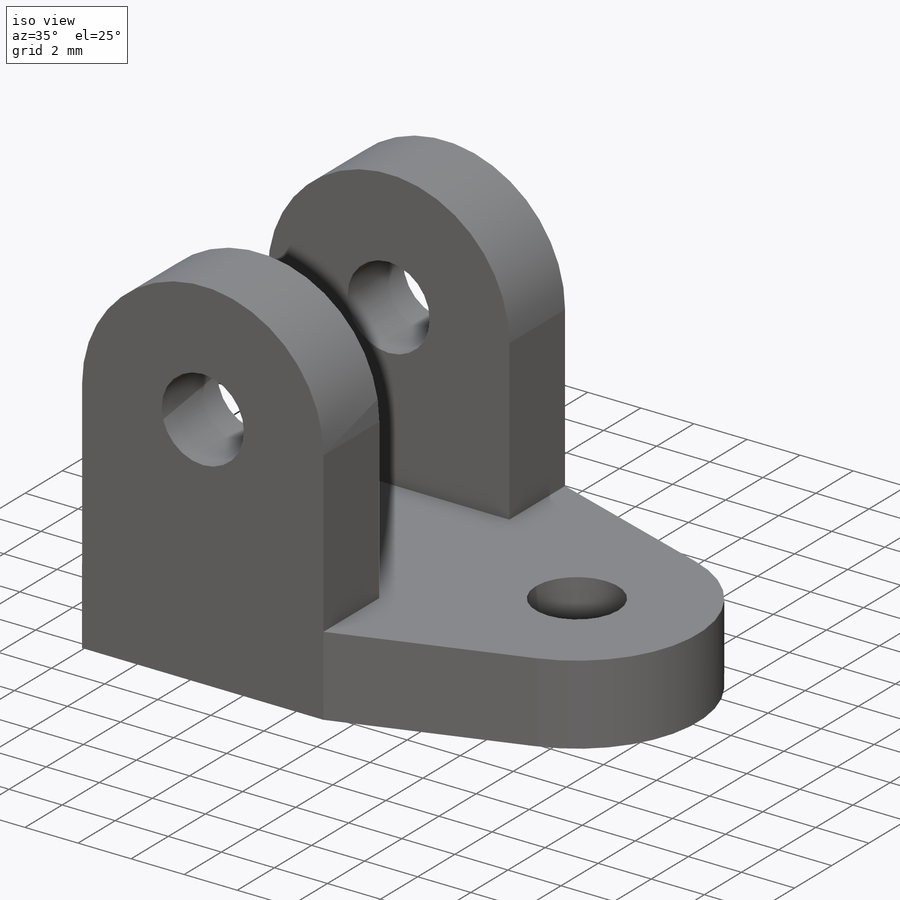
[diagram: iso view]
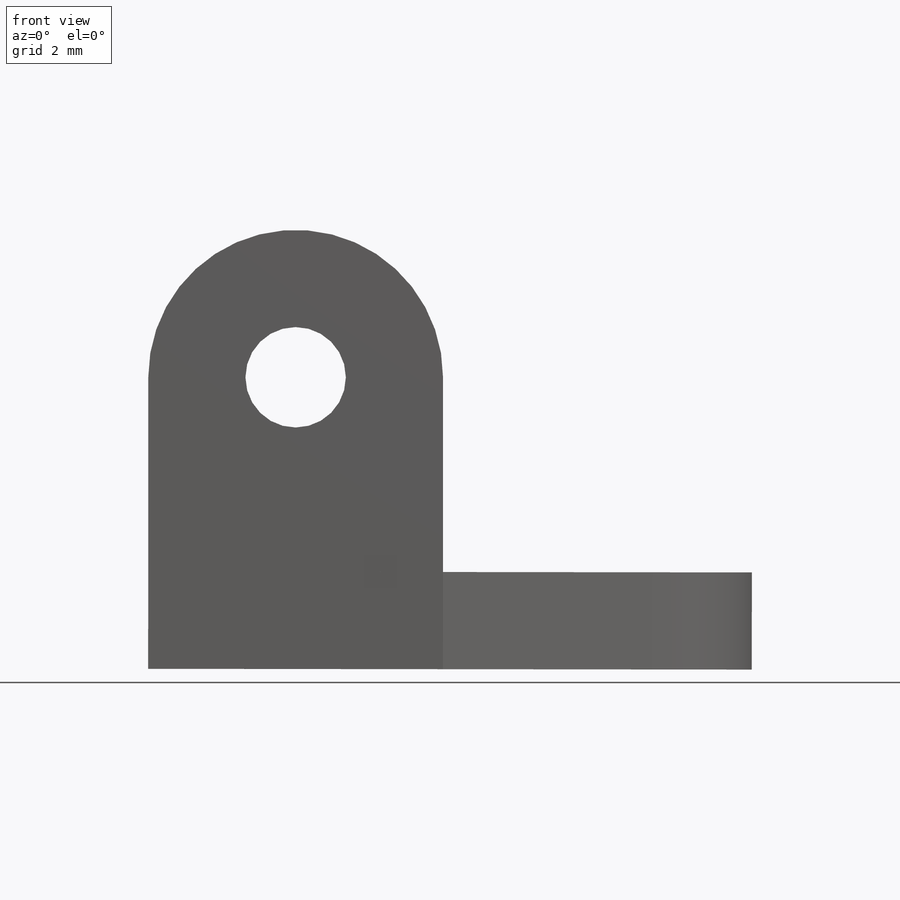
[diagram: front view]
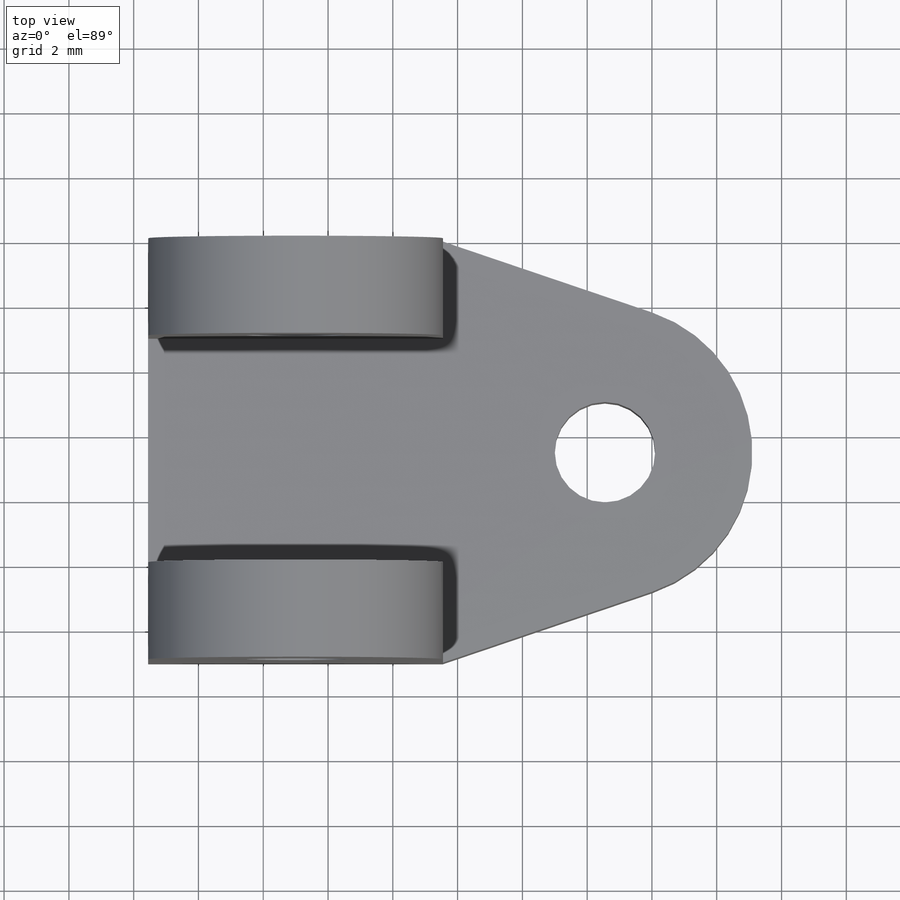
[diagram: top view]
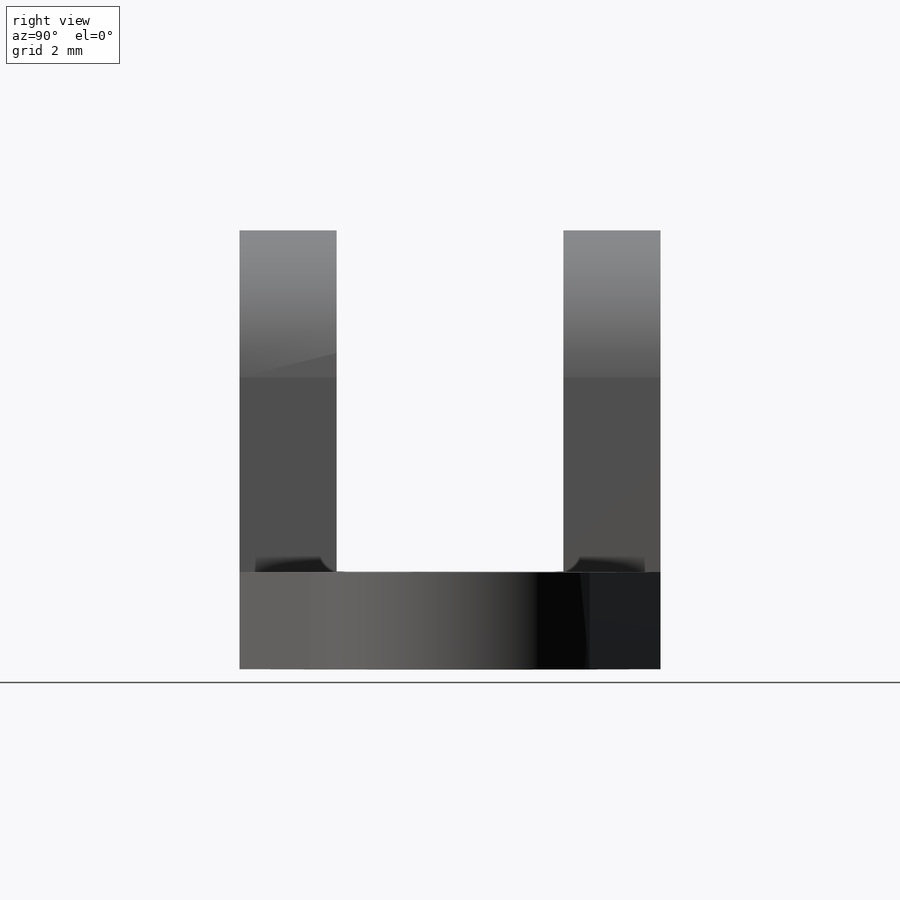
[diagram: right view]
SOLIDWORKS PART (.sldprt)
format: sldprt  version: not decoded by parser v0  size: 211,968 bytes
history: native  units: mm
features: sketch x3, extrude x3, material x1, plane x1 (+13 scaffold rows collapsed)
feature tree (21):
  scaffold x13  (default folders/planes/origin — collapsed)
  material  "Material <not specified>"
  sketch  "Sketch1"  dims[c1.D1=11.4078mm c1.D2=5.0mm c2.D1=3.0mm c2.D2=1.0mm c2.D3=~9.100008mm]
  extrude  "Boss-Extrude1"  Depth=3mm
  plane  "Plane1"  Offset=7mm
  sketch  "Sketch2"  dims[D1=0.0mm]
  extrude  "Boss-Extrude2"  Depth=3mm
  sketch  "Sketch3"  dims[c1.D2=3.1mm c1.D3=3.1mm c1.D1=11.0mm c2.D2=~9.100008mm c2.D1=5.0mm c2.D3=3.0mm c2.D4=~3.446731mm]
  extrude  "Boss-Extrude3"  Depth=3mm
decode coverage: 6 of 6 modeling features carry decoded parameters
note: ~ marks probable driven/reference dimensions
note: suppression state not decoded; provenance and decode notes live in map.json
